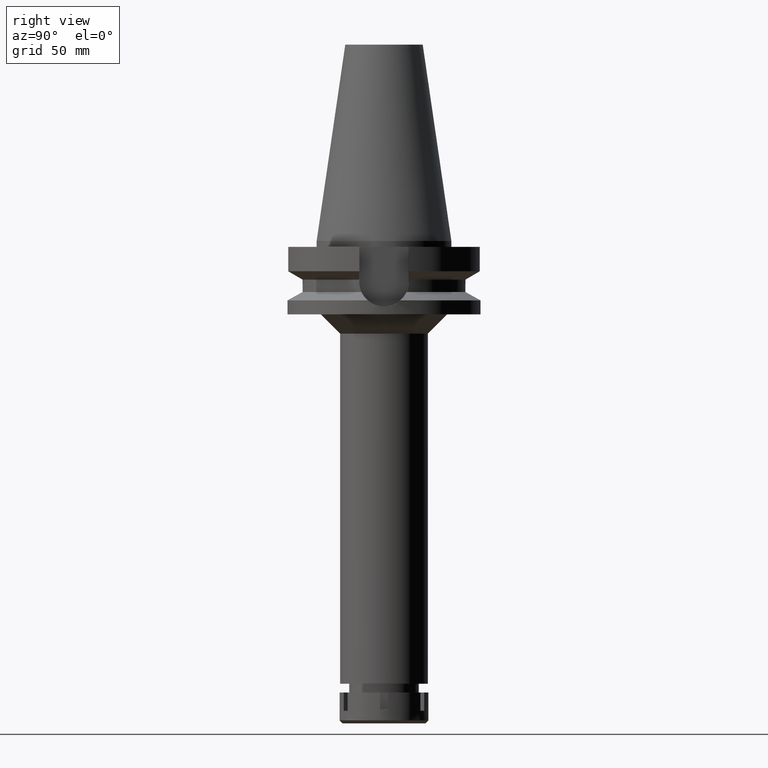
[diagram: clean part render]
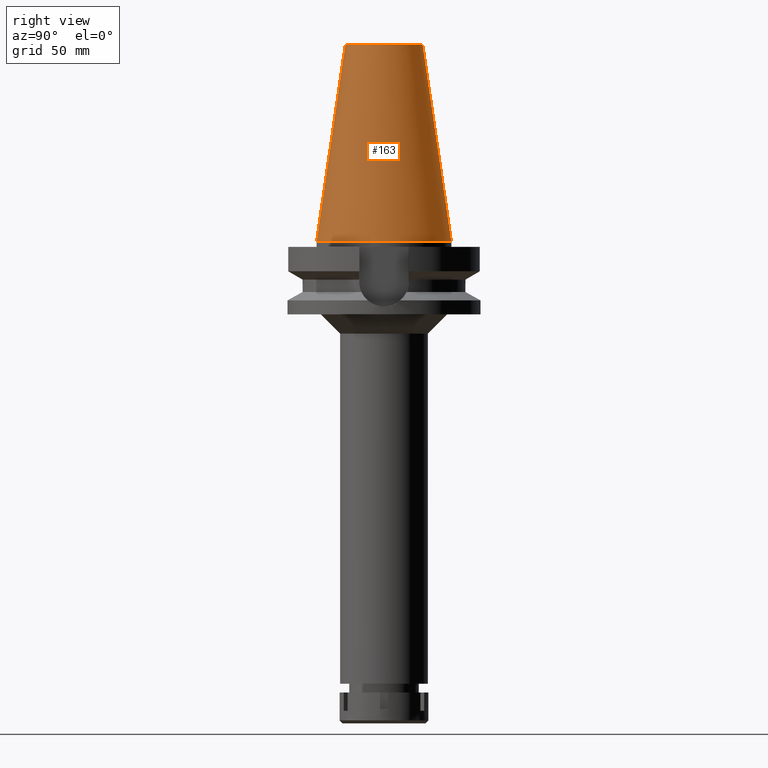
[diagram: same view with one face highlighted and labeled with its STEP entity id]
A machine part, right view. The second image highlights one B-rep face of the part: STEP entity #163.
In plain terms, the highlighted conical surface has half-angle 8.297 deg.
Its self-contained STEP definition (entity closure, byte-faithful):
#2 = LINE ( 'NONE', #263, #1101 ) ;
#30 = CARTESIAN_POINT ( 'NONE',  ( 0.0000000000000000000, -20.07942971896000017, 101.7999999999999972 ) ) ;
#163 = ADVANCED_FACE ( 'NONE', ( #1730 ), #3398, .T. ) ;
#263 = CARTESIAN_POINT ( 'NONE',  ( 0.0000000000000000000, 20.07942971896000017, 101.7999999999999972 ) ) ;
#317 = VERTEX_POINT ( 'NONE', #1191 ) ;
#413 = LINE ( 'NONE', #1811, #1434 ) ;
#549 = CARTESIAN_POINT ( 'NONE',  ( 0.0000000000000000000, 1.847992019912999597E-14, 3.979039320256999774E-13 ) ) ;
#561 = EDGE_CURVE ( 'NONE', #2812, #3552, #3265, .T. ) ;
#874 = DIRECTION ( 'NONE',  ( 0.0000000000000000000, 1.000000000000000000, 0.0000000000000000000 ) ) ;
#1020 = AXIS2_PLACEMENT_3D ( 'NONE', #549, #3365, #874 ) ;
#1040 = DIRECTION ( 'NONE',  ( 0.0000000000000000000, 0.0000000000000000000, -1.000000000000000000 ) ) ;
#1058 = DIRECTION ( 'NONE',  ( 0.0000000000000000000, 1.000000000000000000, 0.0000000000000000000 ) ) ;
#1077 = ORIENTED_EDGE ( 'NONE', *, *, #2089, .T. ) ;
#1101 = VECTOR ( 'NONE', #2991, 1000.000000000000114 ) ;
#1191 = CARTESIAN_POINT ( 'NONE',  ( 0.0000000000000000000, 34.92499999999999716, 5.400124791776999712E-13 ) ) ;
#1273 = DIRECTION ( 'NONE',  ( 0.0000000000000000000, -0.1443043893538948075, -0.9895333461855641000 ) ) ;
#1434 = VECTOR ( 'NONE', #1273, 1000.000000000000114 ) ;
#1461 = CARTESIAN_POINT ( 'NONE',  ( 0.0000000000000000000, 1.847992019912999597E-14, 50.89999999999999858 ) ) ;
#1730 = FACE_OUTER_BOUND ( 'NONE', #3143, .T. ) ;
#1811 = CARTESIAN_POINT ( 'NONE',  ( 0.0000000000000000000, -20.07942971896000017, 101.7999999999999972 ) ) ;
#1954 = EDGE_CURVE ( 'NONE', #317, #2488, #2113, .T. ) ;
#2089 = EDGE_CURVE ( 'NONE', #3552, #2488, #413, .T. ) ;
#2113 = CIRCLE ( 'NONE', #1020, 34.92499999999999716 ) ;
#2210 = DIRECTION ( 'NONE',  ( 0.0000000000000000000, 0.0000000000000000000, -1.000000000000000000 ) ) ;
#2373 = ORIENTED_EDGE ( 'NONE', *, *, #1954, .F. ) ;
#2385 = DIRECTION ( 'NONE',  ( 0.0000000000000000000, -1.000000000000000000, 0.0000000000000000000 ) ) ;
#2393 = AXIS2_PLACEMENT_3D ( 'NONE', #2674, #1040, #1058 ) ;
#2438 = ORIENTED_EDGE ( 'NONE', *, *, #2934, .F. ) ;
#2488 = VERTEX_POINT ( 'NONE', #3193 ) ;
#2674 = CARTESIAN_POINT ( 'NONE',  ( 0.0000000000000000000, 1.847992019912999597E-14, 101.7999999999999972 ) ) ;
#2689 = ORIENTED_EDGE ( 'NONE', *, *, #561, .T. ) ;
#2696 = AXIS2_PLACEMENT_3D ( 'NONE', #1461, #2210, #2385 ) ;
#2812 = VERTEX_POINT ( 'NONE', #2882 ) ;
#2882 = CARTESIAN_POINT ( 'NONE',  ( 0.0000000000000000000, 20.07942971896000017, 101.7999999999999972 ) ) ;
#2934 = EDGE_CURVE ( 'NONE', #2812, #317, #2, .T. ) ;
#2991 = DIRECTION ( 'NONE',  ( 0.0000000000000000000, 0.1443043893538948075, -0.9895333461855641000 ) ) ;
#3143 = EDGE_LOOP ( 'NONE', ( #2689, #1077, #2373, #2438 ) ) ;
#3193 = CARTESIAN_POINT ( 'NONE',  ( 0.0000000000000000000, -34.92499999999999716, 3.979039320256999774E-13 ) ) ;
#3265 = CIRCLE ( 'NONE', #2393, 20.07942971896000017 ) ;
#3365 = DIRECTION ( 'NONE',  ( 0.0000000000000000000, 0.0000000000000000000, -1.000000000000000000 ) ) ;
#3398 = CONICAL_SURFACE ( 'NONE', #2696, 27.50221485948000222, 0.1448099680379422438 ) ;
#3552 = VERTEX_POINT ( 'NONE', #30 ) ;